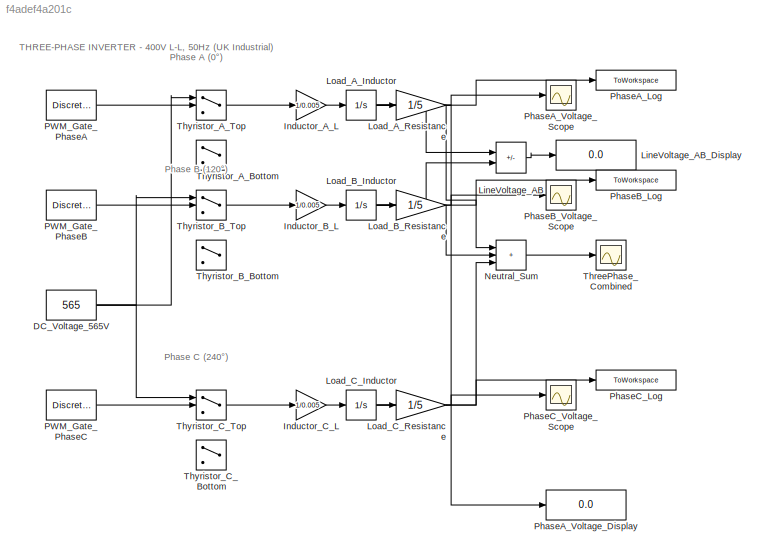
MODEL slx_f4adef4a201c
KIND model
CONFIG AbsTol = auto
CONFIG EnableMultiTasking = off
CONFIG FixedStep = auto
CONFIG MaxStep = 1e-5
CONFIG MinStep = auto
CONFIG RelTol = 1e-3
CONFIG SampleTimeConstraint = Unconstrained
CONFIG SolverName = ode23t
CONFIG StartTime = 0.0
CONFIG StopTime = 0.1
BLOCK [Constant] DC_Voltage_565V
  Value = 565
BLOCK [Gain] Inductor_A_L
  Gain = 1/0.005
BLOCK [Gain] Inductor_B_L
  Gain = 1/0.005
BLOCK [Gain] Inductor_C_L
  Gain = 1/0.005
BLOCK [Sum] LineVoltage_AB
  IconShape = rectangular
  Inputs = +-
BLOCK [Display] LineVoltage_AB_Display
  Decimation = 1
BLOCK [Integrator] Load_A_Inductor
BLOCK [Gain] Load_A_Resistance
  Gain = 1/5
BLOCK [Integrator] Load_B_Inductor
BLOCK [Gain] Load_B_Resistance
  Gain = 1/5
BLOCK [Integrator] Load_C_Inductor
BLOCK [Gain] Load_C_Resistance
  Gain = 1/5
BLOCK [Sum] Neutral_Sum
  IconShape = rectangular
  Inputs = +++
BLOCK [DiscretePulseGenerator] PWM_Gate_PhaseA
  Period = 0.02
  PulseType = Time based
  PulseWidth = 33.3
BLOCK [DiscretePulseGenerator] PWM_Gate_PhaseB
  Period = 0.02
  PhaseDelay = 0.00667
  PulseType = Time based
  PulseWidth = 33.3
BLOCK [DiscretePulseGenerator] PWM_Gate_PhaseC
  Period = 0.02
  PhaseDelay = 0.01333
  PulseType = Time based
  PulseWidth = 33.3
BLOCK [ToWorkspace] PhaseA_Log
  FixptAsFi = on
  MaxDataPoints = inf
  SampleTime = -1
  SaveFormat = Timeseries
  VariableName = three_phase_A
BLOCK [Display] PhaseA_Voltage_Display
  Decimation = 1
BLOCK [Scope] PhaseA_Voltage_Scope
  Floating = off
  GraphicalSettings = {"GraphicalSettings":{"LegacySettings":true,"Style":{"Style":{"PlotType":"Auto"}}}}
  NumInputPorts = 1
  WasSavedAsWebScope = on
BLOCK [ToWorkspace] PhaseB_Log
  FixptAsFi = on
  MaxDataPoints = inf
  SampleTime = -1
  SaveFormat = Timeseries
  VariableName = three_phase_B
BLOCK [Scope] PhaseB_Voltage_Scope
  Floating = off
  GraphicalSettings = {"GraphicalSettings":{"LegacySettings":true,"Style":{"Style":{"PlotType":"Auto"}}}}
  NumInputPorts = 1
  WasSavedAsWebScope = on
BLOCK [ToWorkspace] PhaseC_Log
  FixptAsFi = on
  MaxDataPoints = inf
  SampleTime = -1
  SaveFormat = Timeseries
  VariableName = three_phase_C
BLOCK [Scope] PhaseC_Voltage_Scope
  Floating = off
  GraphicalSettings = {"GraphicalSettings":{"LegacySettings":true,"Style":{"Style":{"PlotType":"Auto"}}}}
  NumInputPorts = 1
  WasSavedAsWebScope = on
BLOCK [Scope] ThreePhase_Combined
  Floating = off
  GraphicalSettings = {"GraphicalSettings":{"LegacySettings":true,"Style":{"Style":{"PlotType":"Auto"}}}}
  NumInputPorts = 1
  WasSavedAsWebScope = on
BLOCK [Switch] Thyristor_A_Bottom
  Criteria = u2 > Threshold
  InputSameDT = off
  SaturateOnIntegerOverflow = off
  Threshold = 0.5
BLOCK [Switch] Thyristor_A_Top
  Criteria = u2 > Threshold
  InputSameDT = off
  SaturateOnIntegerOverflow = off
  Threshold = 0.5
BLOCK [Switch] Thyristor_B_Bottom
  Criteria = u2 > Threshold
  InputSameDT = off
  SaturateOnIntegerOverflow = off
  Threshold = 0.5
BLOCK [Switch] Thyristor_B_Top
  Criteria = u2 > Threshold
  InputSameDT = off
  SaturateOnIntegerOverflow = off
  Threshold = 0.5
BLOCK [Switch] Thyristor_C_Bottom
  Criteria = u2 > Threshold
  InputSameDT = off
  SaturateOnIntegerOverflow = off
  Threshold = 0.5
BLOCK [Switch] Thyristor_C_Top
  Criteria = u2 > Threshold
  InputSameDT = off
  SaturateOnIntegerOverflow = off
  Threshold = 0.5
ANNOTATION (root): Phase A (0°)
ANNOTATION (root): Phase B (120°)
ANNOTATION (root): Phase C (240°)
ANNOTATION (root): THREE-PHASE INVERTER - 400V L-L, 50Hz (UK Industrial)
NET DC_Voltage_565V:1 -> Thyristor_A_Top:1, Thyristor_B_Top:1, Thyristor_C_Top:1
LINE Inductor_A_L:1 -> Load_A_Inductor:1
LINE Inductor_B_L:1 -> Load_B_Inductor:1
LINE Inductor_C_L:1 -> Load_C_Inductor:1
LINE LineVoltage_AB:1 -> LineVoltage_AB_Display:1
NET Load_A_Inductor:1 -> LineVoltage_AB:1, Load_A_Resistance:1, PhaseA_Log:1, PhaseA_Voltage_Display:1, PhaseA_Voltage_Scope:1
LINE Load_A_Resistance:1 -> Neutral_Sum:1
NET Load_B_Inductor:1 -> LineVoltage_AB:2, Load_B_Resistance:1, PhaseB_Log:1, PhaseB_Voltage_Scope:1
LINE Load_B_Resistance:1 -> Neutral_Sum:2
NET Load_C_Inductor:1 -> Load_C_Resistance:1, PhaseC_Log:1, PhaseC_Voltage_Scope:1
LINE Load_C_Resistance:1 -> Neutral_Sum:3
LINE Neutral_Sum:1 -> ThreePhase_Combined:1
LINE PWM_Gate_PhaseA:1 -> Thyristor_A_Top:2
LINE PWM_Gate_PhaseB:1 -> Thyristor_B_Top:2
LINE PWM_Gate_PhaseC:1 -> Thyristor_C_Top:2
LINE Thyristor_A_Top:1 -> Inductor_A_L:1
LINE Thyristor_B_Top:1 -> Inductor_B_L:1
LINE Thyristor_C_Top:1 -> Inductor_C_L:1
note: NET lines group one-source signal fan-out (src -> all destinations, sorted); 1:1 wires keep LINE
